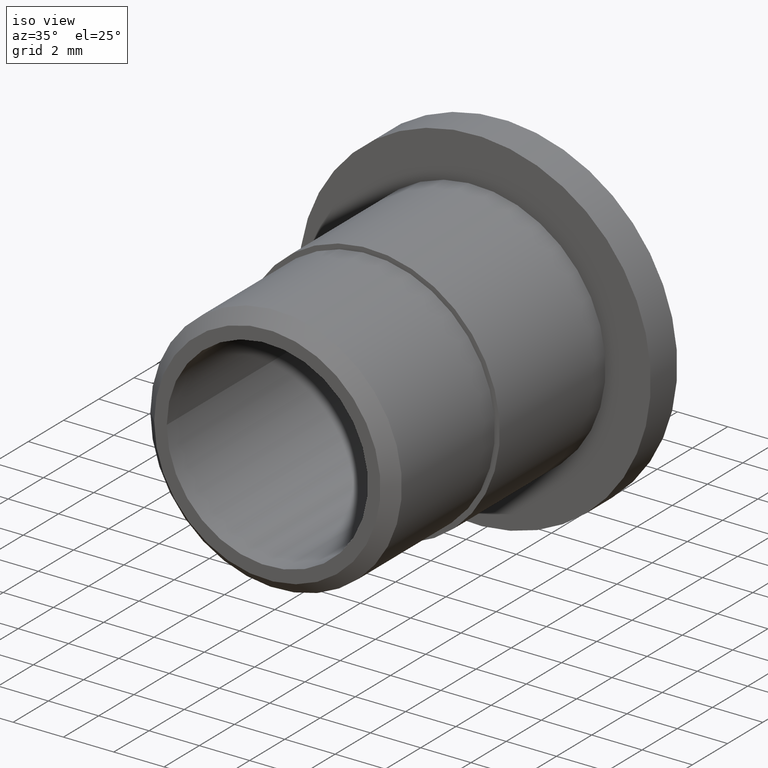
[diagram: clean part render]
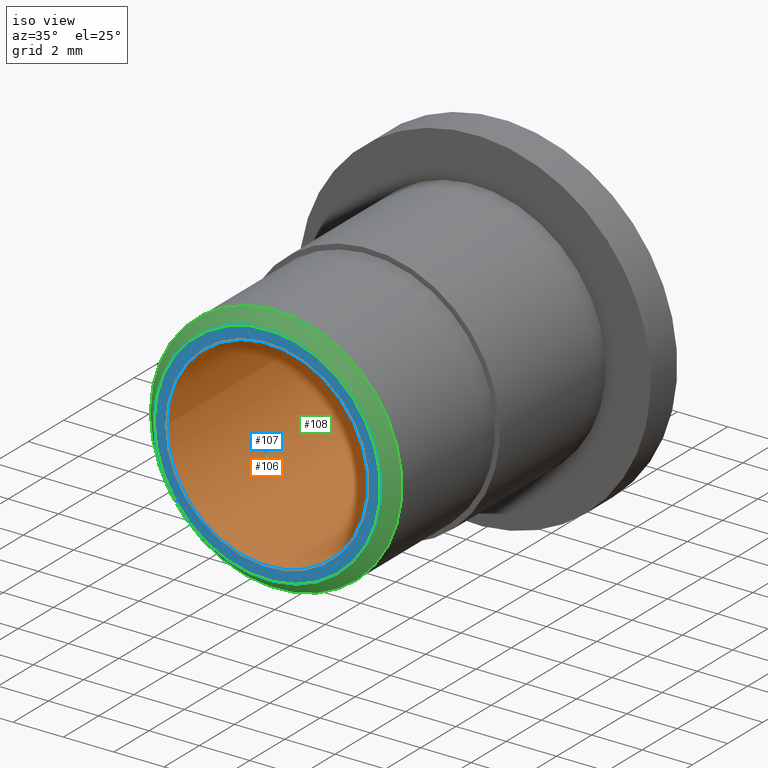
[diagram: same view with three faces highlighted in distinct colors, each labeled with its STEP entity id]
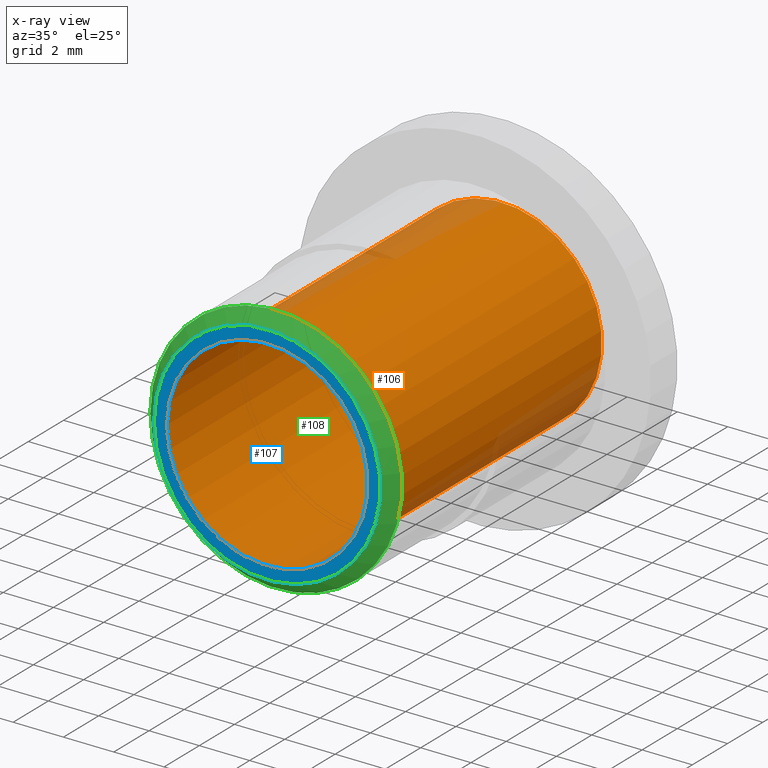
[diagram: x-ray of the same camera — body ghosted, the three highlighted faces saturated]
A machine part, iso view with three faces highlighted in distinct colors.
The next image is the same camera in x-ray (body ghosted, the three faces saturated) — at least one of them is partly hidden behind the body in this view.
Their STEP definitions:

[orange] entity #106 — the highlighted cylindrical surface (bore or boss wall) has radius 4 mm, axis along (0, 1, 0).
#16=CYLINDRICAL_SURFACE('',#119,4.);
#21=FACE_BOUND('',#41,.T.);
#30=FACE_OUTER_BOUND('',#40,.T.);
#40=EDGE_LOOP('',(#85));
#41=EDGE_LOOP('',(#86));
#57=CIRCLE('',#118,4.);
#58=CIRCLE('',#120,4.);
#66=VERTEX_POINT('',#176);
#67=VERTEX_POINT('',#179);
#75=EDGE_CURVE('',#66,#66,#57,.T.);
#76=EDGE_CURVE('',#67,#67,#58,.T.);
#85=ORIENTED_EDGE('',*,*,#76,.F.);
#86=ORIENTED_EDGE('',*,*,#75,.T.);
#106=ADVANCED_FACE('',(#30,#21),#16,.F.);
#118=AXIS2_PLACEMENT_3D('',#177,#140,#141);
#119=AXIS2_PLACEMENT_3D('',#178,#142,#143);
#120=AXIS2_PLACEMENT_3D('',#180,#144,#145);
#140=DIRECTION('center_axis',(0.,1.,0.));
#141=DIRECTION('ref_axis',(-1.,0.,0.));
#142=DIRECTION('center_axis',(0.,1.,0.));
#143=DIRECTION('ref_axis',(-1.,0.,0.));
#144=DIRECTION('center_axis',(0.,1.,0.));
#145=DIRECTION('ref_axis',(-1.,0.,0.));
#176=CARTESIAN_POINT('',(-4.,14.,0.));
#177=CARTESIAN_POINT('Origin',(0.,14.,0.));
#178=CARTESIAN_POINT('Origin',(0.,7.36049621648681,0.));
#179=CARTESIAN_POINT('',(-4.,0.720992432973626,0.));
#180=CARTESIAN_POINT('Origin',(0.,0.720992432973626,0.));

[blue] entity #107 — the highlighted planar face has unit normal (0, -1, 0).
#22=FACE_BOUND('',#43,.T.);
#31=FACE_OUTER_BOUND('',#42,.T.);
#42=EDGE_LOOP('',(#87));
#43=EDGE_LOOP('',(#88));
#58=CIRCLE('',#120,4.);
#59=CIRCLE('',#122,4.5);
#67=VERTEX_POINT('',#179);
#68=VERTEX_POINT('',#182);
#76=EDGE_CURVE('',#67,#67,#58,.T.);
#77=EDGE_CURVE('',#68,#68,#59,.T.);
#87=ORIENTED_EDGE('',*,*,#77,.F.);
#88=ORIENTED_EDGE('',*,*,#76,.T.);
#102=PLANE('',#121);
#107=ADVANCED_FACE('',(#31,#22),#102,.T.);
#120=AXIS2_PLACEMENT_3D('',#180,#144,#145);
#121=AXIS2_PLACEMENT_3D('',#181,#146,#147);
#122=AXIS2_PLACEMENT_3D('',#183,#148,#149);
#144=DIRECTION('center_axis',(0.,1.,0.));
#145=DIRECTION('ref_axis',(-1.,0.,0.));
#146=DIRECTION('center_axis',(0.,-1.,0.));
#147=DIRECTION('ref_axis',(0.,0.,-1.));
#148=DIRECTION('center_axis',(0.,1.,0.));
#149=DIRECTION('ref_axis',(-1.,0.,0.));
#179=CARTESIAN_POINT('',(-4.,0.720992432973626,0.));
#180=CARTESIAN_POINT('Origin',(0.,0.720992432973626,0.));
#181=CARTESIAN_POINT('Origin',(-4.25,0.720992432973626,0.));
#182=CARTESIAN_POINT('',(-4.5,0.720992432973626,0.));
#183=CARTESIAN_POINT('Origin',(0.,0.720992432973626,0.));

[green] entity #108 — the highlighted conical surface has half-angle 45 deg.
#15=CONICAL_SURFACE('',#123,4.75,45.0000000000001);
#23=FACE_BOUND('',#45,.T.);
#32=FACE_OUTER_BOUND('',#44,.T.);
#44=EDGE_LOOP('',(#89));
#45=EDGE_LOOP('',(#90));
#59=CIRCLE('',#122,4.5);
#60=CIRCLE('',#124,5.);
#68=VERTEX_POINT('',#182);
#69=VERTEX_POINT('',#185);
#77=EDGE_CURVE('',#68,#68,#59,.T.);
#78=EDGE_CURVE('',#69,#69,#60,.T.);
#89=ORIENTED_EDGE('',*,*,#78,.F.);
#90=ORIENTED_EDGE('',*,*,#77,.T.);
#108=ADVANCED_FACE('',(#32,#23),#15,.T.);
#122=AXIS2_PLACEMENT_3D('',#183,#148,#149);
#123=AXIS2_PLACEMENT_3D('',#184,#150,#151);
#124=AXIS2_PLACEMENT_3D('',#186,#152,#153);
#148=DIRECTION('center_axis',(0.,1.,0.));
#149=DIRECTION('ref_axis',(-1.,0.,0.));
#150=DIRECTION('center_axis',(0.,1.,0.));
#151=DIRECTION('ref_axis',(-1.,0.,0.));
#152=DIRECTION('center_axis',(0.,1.,0.));
#153=DIRECTION('ref_axis',(-1.,0.,0.));
#182=CARTESIAN_POINT('',(-4.5,0.720992432973626,0.));
#183=CARTESIAN_POINT('Origin',(0.,0.720992432973626,0.));
#184=CARTESIAN_POINT('Origin',(0.,0.970992432973627,0.));
#185=CARTESIAN_POINT('',(-5.,1.22099243297363,0.));
#186=CARTESIAN_POINT('Origin',(0.,1.22099243297363,0.));